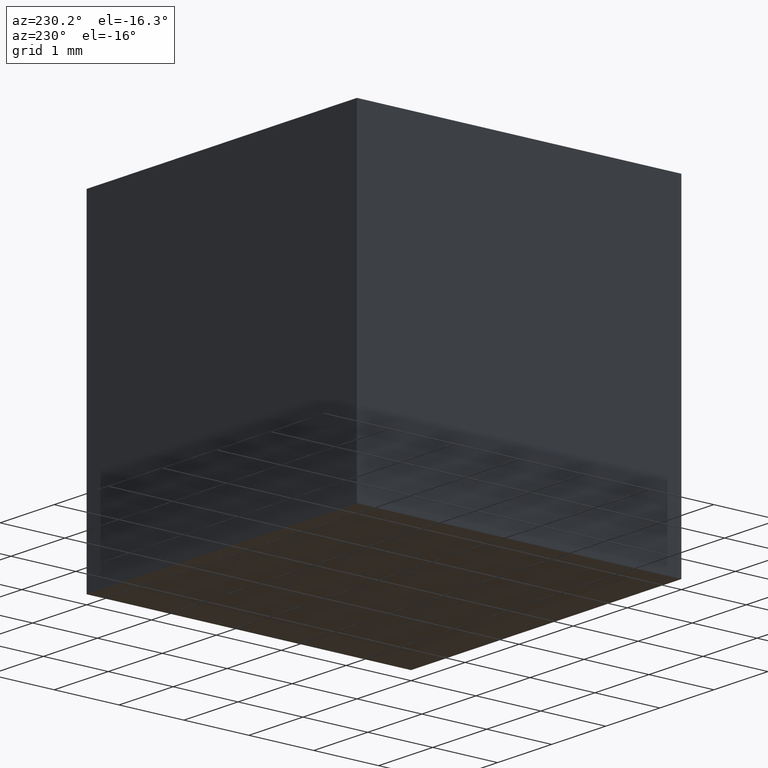
[diagram: clean part render]
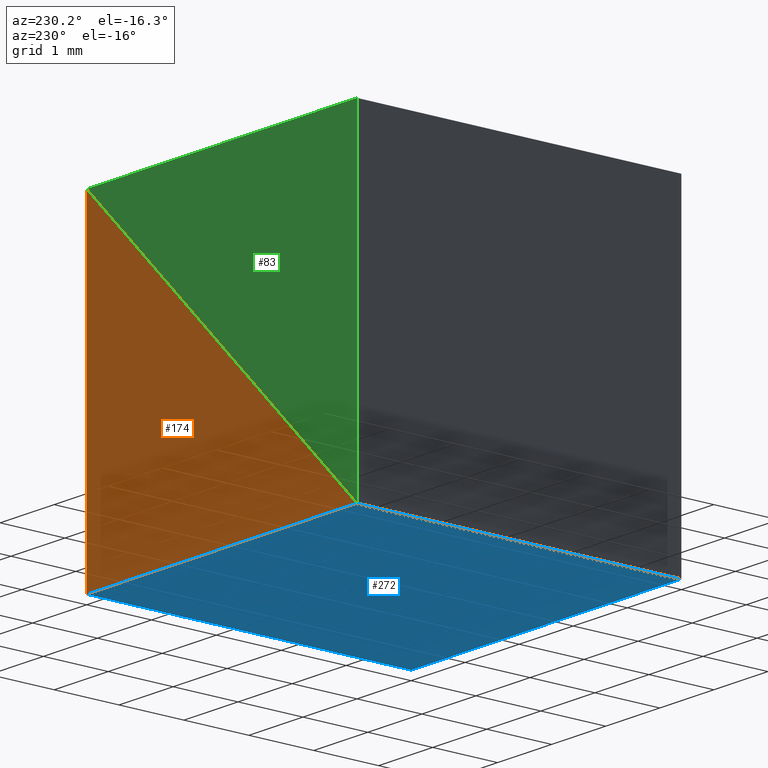
[diagram: same view with three faces highlighted in distinct colors, each labeled with its STEP entity id]
A machine part, auxiliary view with three faces highlighted in distinct colors.
Their STEP definitions:

[orange] entity #174 — the highlighted planar face has unit normal (-0, 1, 0).
#8 = DIRECTION ( 'NONE',  ( -0.0000000000000000000, 1.000000000000000000, 0.0000000000000000000 ) ) ;
#9 = DIRECTION ( 'NONE',  ( -1.000000000000000000, 0.0000000000000000000, 1.734723475976807100E-016 ) ) ;
#10 = CARTESIAN_POINT ( 'NONE',  ( 0.0000000000000000000, 5.000000000000000000, -5.000000000000000000 ) ) ;
#11 = CARTESIAN_POINT ( 'NONE',  ( 0.0000000000000000000, 5.000000000000000000, 0.0000000000000000000 ) ) ;
#17 = VERTEX_POINT ( 'NONE', #10 ) ;
#27 = AXIS2_PLACEMENT_3D ( 'NONE', #11, #8, #148 ) ;
#28 = LINE ( 'NONE', #149, #85 ) ;
#40 = EDGE_CURVE ( 'NONE', #17, #253, #28, .T. ) ;
#46 = ORIENTED_EDGE ( 'NONE', *, *, #207, .T. ) ;
#50 = CARTESIAN_POINT ( 'NONE',  ( 0.0000000000000000000, 5.000000000000000000, 0.0000000000000000000 ) ) ;
#66 = ORIENTED_EDGE ( 'NONE', *, *, #40, .T. ) ;
#73 = DIRECTION ( 'NONE',  ( 0.7071067811865475700, 0.0000000000000000000, 0.7071067811865474600 ) ) ;
#75 = CARTESIAN_POINT ( 'NONE',  ( 0.0000000000000000000, 5.000000000000000000, 0.0000000000000000000 ) ) ;
#85 = VECTOR ( 'NONE', #9, 1000.000000000000000 ) ;
#91 = VECTOR ( 'NONE', #192, 1000.000000000000000 ) ;
#93 = ORIENTED_EDGE ( 'NONE', *, *, #164, .T. ) ;
#119 = CARTESIAN_POINT ( 'NONE',  ( -5.000000000000000000, 5.000000000000000000, -4.999999999999999100 ) ) ;
#148 = DIRECTION ( 'NONE',  ( 0.0000000000000000000, -0.0000000000000000000, 1.000000000000000000 ) ) ;
#149 = CARTESIAN_POINT ( 'NONE',  ( 0.0000000000000000000, 5.000000000000000000, -5.000000000000000000 ) ) ;
#154 = FACE_OUTER_BOUND ( 'NONE', #159, .T. ) ;
#159 = EDGE_LOOP ( 'NONE', ( #46, #93, #66 ) ) ;
#162 = LINE ( 'NONE', #119, #208 ) ;
#164 = EDGE_CURVE ( 'NONE', #165, #17, #269, .T. ) ;
#165 = VERTEX_POINT ( 'NONE', #75 ) ;
#174 = ADVANCED_FACE ( 'NONE', ( #154 ), #214, .T. ) ;
#192 = DIRECTION ( 'NONE',  ( 0.0000000000000000000, 0.0000000000000000000, -1.000000000000000000 ) ) ;
#207 = EDGE_CURVE ( 'NONE', #253, #165, #162, .T. ) ;
#208 = VECTOR ( 'NONE', #73, 1000.000000000000000 ) ;
#214 = PLANE ( 'NONE',  #27 ) ;
#238 = CARTESIAN_POINT ( 'NONE',  ( -5.000000000000000000, 5.000000000000000000, -4.999999999999999100 ) ) ;
#253 = VERTEX_POINT ( 'NONE', #238 ) ;
#269 = LINE ( 'NONE', #50, #91 ) ;

[blue] entity #272 — the highlighted planar face has unit normal (0, -0, 1).
#3 = EDGE_CURVE ( 'NONE', #253, #135, #205, .T. ) ;
#9 = DIRECTION ( 'NONE',  ( -1.000000000000000000, 0.0000000000000000000, 1.734723475976807100E-016 ) ) ;
#10 = CARTESIAN_POINT ( 'NONE',  ( 0.0000000000000000000, 5.000000000000000000, -5.000000000000000000 ) ) ;
#13 = ORIENTED_EDGE ( 'NONE', *, *, #3, .F. ) ;
#17 = VERTEX_POINT ( 'NONE', #10 ) ;
#28 = LINE ( 'NONE', #149, #85 ) ;
#31 = DIRECTION ( 'NONE',  ( -0.0000000000000000000, -1.000000000000000000, -0.0000000000000000000 ) ) ;
#33 = VECTOR ( 'NONE', #31, 1000.000000000000000 ) ;
#35 = ORIENTED_EDGE ( 'NONE', *, *, #191, .T. ) ;
#40 = EDGE_CURVE ( 'NONE', #17, #253, #28, .T. ) ;
#57 = ORIENTED_EDGE ( 'NONE', *, *, #147, .T. ) ;
#78 = CARTESIAN_POINT ( 'NONE',  ( 0.0000000000000000000, 0.0000000000000000000, -5.000000000000000000 ) ) ;
#85 = VECTOR ( 'NONE', #9, 1000.000000000000000 ) ;
#96 = LINE ( 'NONE', #188, #33 ) ;
#116 = AXIS2_PLACEMENT_3D ( 'NONE', #217, #299, #221 ) ;
#123 = DIRECTION ( 'NONE',  ( -0.0000000000000000000, -1.000000000000000000, -0.0000000000000000000 ) ) ;
#135 = VERTEX_POINT ( 'NONE', #241 ) ;
#139 = FACE_OUTER_BOUND ( 'NONE', #178, .T. ) ;
#143 = VECTOR ( 'NONE', #123, 1000.000000000000000 ) ;
#147 = EDGE_CURVE ( 'NONE', #187, #135, #281, .T. ) ;
#149 = CARTESIAN_POINT ( 'NONE',  ( 0.0000000000000000000, 5.000000000000000000, -5.000000000000000000 ) ) ;
#178 = EDGE_LOOP ( 'NONE', ( #57, #13, #190, #35 ) ) ;
#187 = VERTEX_POINT ( 'NONE', #288 ) ;
#188 = CARTESIAN_POINT ( 'NONE',  ( 0.0000000000000000000, 5.000000000000000000, -5.000000000000000000 ) ) ;
#190 = ORIENTED_EDGE ( 'NONE', *, *, #40, .F. ) ;
#191 = EDGE_CURVE ( 'NONE', #17, #187, #96, .T. ) ;
#205 = LINE ( 'NONE', #291, #143 ) ;
#210 = VECTOR ( 'NONE', #270, 1000.000000000000000 ) ;
#217 = CARTESIAN_POINT ( 'NONE',  ( 0.0000000000000000000, 5.000000000000000000, -5.000000000000000000 ) ) ;
#221 = DIRECTION ( 'NONE',  ( 1.000000000000000000, 0.0000000000000000000, -1.734723475976807100E-016 ) ) ;
#238 = CARTESIAN_POINT ( 'NONE',  ( -5.000000000000000000, 5.000000000000000000, -4.999999999999999100 ) ) ;
#241 = CARTESIAN_POINT ( 'NONE',  ( -5.000000000000000000, 0.0000000000000000000, -4.999999999999999100 ) ) ;
#253 = VERTEX_POINT ( 'NONE', #238 ) ;
#270 = DIRECTION ( 'NONE',  ( -1.000000000000000000, 0.0000000000000000000, 1.734723475976807100E-016 ) ) ;
#272 = ADVANCED_FACE ( 'NONE', ( #139 ), #294, .F. ) ;
#281 = LINE ( 'NONE', #78, #210 ) ;
#288 = CARTESIAN_POINT ( 'NONE',  ( 0.0000000000000000000, 0.0000000000000000000, -5.000000000000000000 ) ) ;
#291 = CARTESIAN_POINT ( 'NONE',  ( -5.000000000000000000, 5.000000000000000000, -4.999999999999999100 ) ) ;
#294 = PLANE ( 'NONE',  #116 ) ;
#299 = DIRECTION ( 'NONE',  ( 1.734723475976807100E-016, -0.0000000000000000000, 1.000000000000000000 ) ) ;

[green] entity #83 — the highlighted planar face has unit normal (0, 1, 0).
#16 = CARTESIAN_POINT ( 'NONE',  ( 0.0000000000000000000, 5.000000000000000000, 0.0000000000000000000 ) ) ;
#19 = ORIENTED_EDGE ( 'NONE', *, *, #47, .F. ) ;
#24 = EDGE_CURVE ( 'NONE', #227, #69, #118, .T. ) ;
#36 = DIRECTION ( 'NONE',  ( 0.0000000000000000000, 1.000000000000000000, 0.0000000000000000000 ) ) ;
#37 = DIRECTION ( 'NONE',  ( 0.0000000000000000000, -0.0000000000000000000, 1.000000000000000000 ) ) ;
#38 = FACE_OUTER_BOUND ( 'NONE', #258, .T. ) ;
#47 = EDGE_CURVE ( 'NONE', #70, #227, #180, .T. ) ;
#61 = VECTOR ( 'NONE', #104, 1000.000000000000000 ) ;
#69 = VERTEX_POINT ( 'NONE', #102 ) ;
#70 = VERTEX_POINT ( 'NONE', #173 ) ;
#81 = CARTESIAN_POINT ( 'NONE',  ( -5.000000000000000000, 5.000000000000000000, -4.999999999999999100 ) ) ;
#83 = ADVANCED_FACE ( 'NONE', ( #38 ), #129, .T. ) ;
#88 = EDGE_CURVE ( 'NONE', #69, #70, #212, .T. ) ;
#102 = CARTESIAN_POINT ( 'NONE',  ( -5.000000000000000000, 5.000000000000000000, 0.0000000000000000000 ) ) ;
#104 = DIRECTION ( 'NONE',  ( -1.000000000000000000, -0.0000000000000000000, -0.0000000000000000000 ) ) ;
#118 = LINE ( 'NONE', #197, #61 ) ;
#120 = AXIS2_PLACEMENT_3D ( 'NONE', #16, #36, #37 ) ;
#129 = PLANE ( 'NONE',  #120 ) ;
#145 = CARTESIAN_POINT ( 'NONE',  ( 0.0000000000000000000, 5.000000000000000000, 0.0000000000000000000 ) ) ;
#173 = CARTESIAN_POINT ( 'NONE',  ( -5.000000000000000000, 5.000000000000000000, -4.999999999999999100 ) ) ;
#180 = LINE ( 'NONE', #264, #234 ) ;
#197 = CARTESIAN_POINT ( 'NONE',  ( -5.000000000000000000, 5.000000000000000000, 0.0000000000000000000 ) ) ;
#211 = ORIENTED_EDGE ( 'NONE', *, *, #24, .F. ) ;
#212 = LINE ( 'NONE', #81, #284 ) ;
#220 = DIRECTION ( 'NONE',  ( -0.0000000000000000000, -0.0000000000000000000, -1.000000000000000000 ) ) ;
#227 = VERTEX_POINT ( 'NONE', #145 ) ;
#233 = ORIENTED_EDGE ( 'NONE', *, *, #88, .F. ) ;
#234 = VECTOR ( 'NONE', #236, 1000.000000000000000 ) ;
#236 = DIRECTION ( 'NONE',  ( 0.7071067811865475700, 0.0000000000000000000, 0.7071067811865474600 ) ) ;
#258 = EDGE_LOOP ( 'NONE', ( #19, #233, #211 ) ) ;
#264 = CARTESIAN_POINT ( 'NONE',  ( 0.0000000000000000000, 5.000000000000000000, 0.0000000000000000000 ) ) ;
#284 = VECTOR ( 'NONE', #220, 1000.000000000000000 ) ;